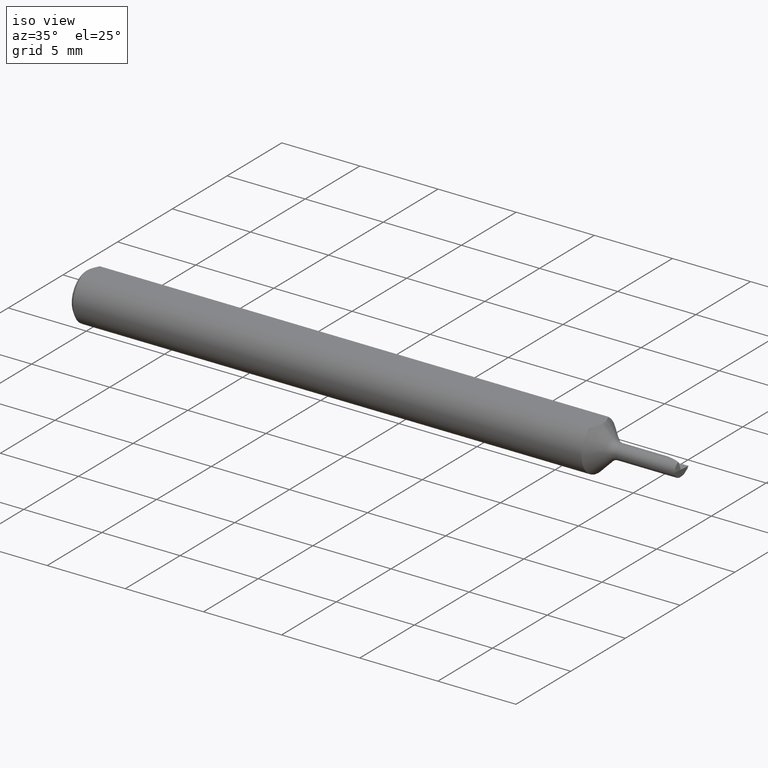
[diagram: clean part render]
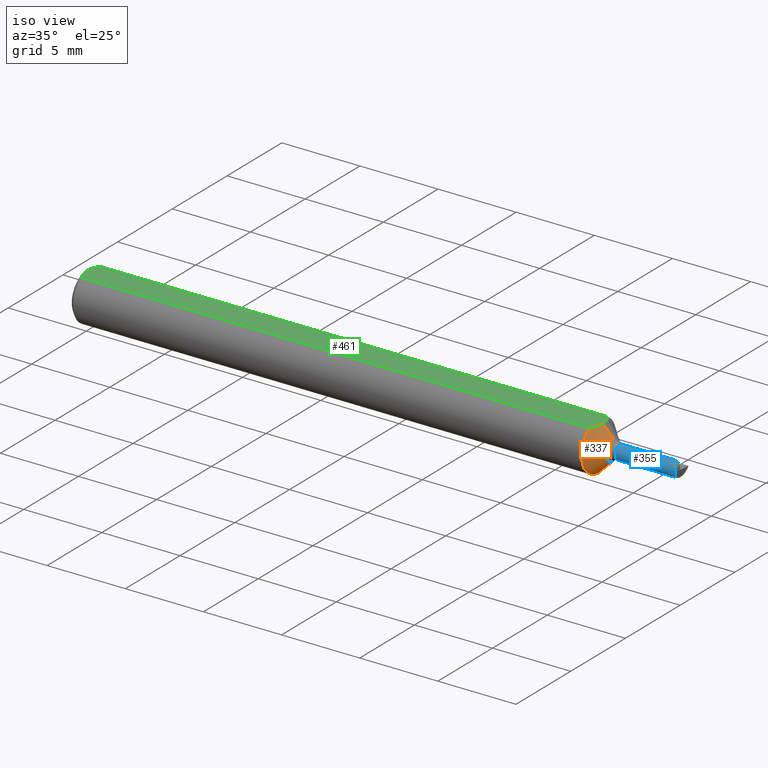
[diagram: same view with three faces highlighted in distinct colors, each labeled with its STEP entity id]
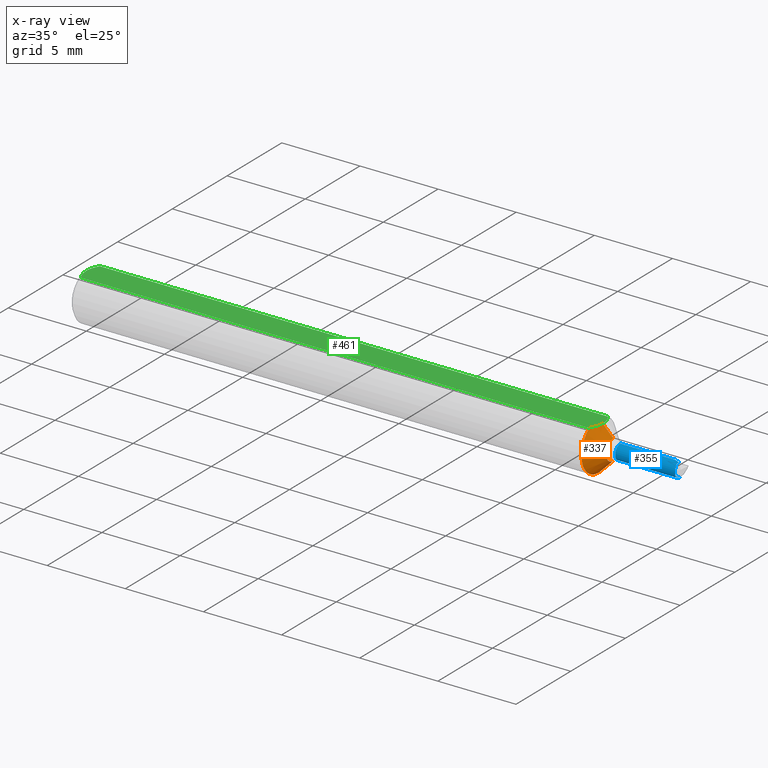
[diagram: x-ray of the same camera — body ghosted, the three highlighted faces saturated]
A machine part, iso view with three faces highlighted in distinct colors.
The next image is the same camera in x-ray (body ghosted, the three faces saturated) — at least one of them is partly hidden behind the body in this view.
Their STEP definitions:

[orange] entity #337 — the highlighted conical surface has half-angle 45 deg.
#30 = CARTESIAN_POINT ( 'NONE',  ( 1.291150000000000242, -0.03386738844375220686, 0.05235000000000000070 ) ) ;
#43 = DIRECTION ( 'NONE',  ( 0.000000000000000000, 0.000000000000000000, 1.000000000000000000 ) ) ;
#55 = EDGE_CURVE ( 'NONE', #108, #463, #227, .T. ) ;
#73 = ORIENTED_EDGE ( 'NONE', *, *, #130, .T. ) ;
#82 = ORIENTED_EDGE ( 'NONE', *, *, #562, .F. ) ;
#101 = CARTESIAN_POINT ( 'NONE',  ( 1.327677669529663707, 3.162323435702260084E-18, -0.02582233047033637152 ) ) ;
#108 = VERTEX_POINT ( 'NONE', #101 ) ;
#117 = VERTEX_POINT ( 'NONE', #545 ) ;
#130 = EDGE_CURVE ( 'NONE', #108, #213, #373, .T. ) ;
#134 = VECTOR ( 'NONE', #504, 39.37007874015748143 ) ;
#168 = DIRECTION ( 'NONE',  ( -1.000000000000000000, -0.000000000000000000, -0.000000000000000000 ) ) ;
#178 = DIRECTION ( 'NONE',  ( -1.000000000000000000, -0.000000000000000000, -0.000000000000000000 ) ) ;
#184 = AXIS2_PLACEMENT_3D ( 'NONE', #441, #178, #574 ) ;
#189 = CARTESIAN_POINT ( 'NONE',  ( 1.301150000000000029, -0.005924734429433297159, 0.05235000000000002152 ) ) ;
#197 = DIRECTION ( 'NONE',  ( -1.000000000000000000, -0.000000000000000000, -0.000000000000000000 ) ) ;
#213 = VERTEX_POINT ( 'NONE', #393 ) ;
#224 = ORIENTED_EDGE ( 'NONE', *, *, #546, .T. ) ;
#225 = FACE_OUTER_BOUND ( 'NONE', #524, .T. ) ;
#227 = LINE ( 'NONE', #395, #134 ) ;
#242 = ORIENTED_EDGE ( 'NONE', *, *, #632, .T. ) ;
#243 = AXIS2_PLACEMENT_3D ( 'NONE', #349, #197, #43 ) ;
#291 = CARTESIAN_POINT ( 'NONE',  ( 1.301150000000000029, -1.477724559795570125E-21, 0.05235000000000001458 ) ) ;
#297 = CARTESIAN_POINT ( 'NONE',  ( 1.300078879331740378, -0.01191647624495715749, 0.05235000000000002152 ) ) ;
#303 = CARTESIAN_POINT ( 'NONE',  ( 1.327677669529663707, 0.000000000000000000, 0.02582233047033637499 ) ) ;
#320 = CIRCLE ( 'NONE', #184, 0.06235000000000000264 ) ;
#337 = ADVANCED_FACE ( 'NONE', ( #225 ), #466, .T. ) ;
#344 = CARTESIAN_POINT ( 'NONE',  ( 1.291150000000000242, -0.03386738844375220686, 0.05235000000000000070 ) ) ;
#349 = CARTESIAN_POINT ( 'NONE',  ( 1.327677669529663707, 0.000000000000000000, 0.000000000000000000 ) ) ;
#373 = CIRCLE ( 'NONE', #243, 0.02582233047033637499 ) ;
#392 = DIRECTION ( 'NONE',  ( -0.7071067811865457964, 0.000000000000000000, 0.7071067811865492381 ) ) ;
#393 = CARTESIAN_POINT ( 'NONE',  ( 1.327677669529663707, 0.000000000000000000, 0.02582233047033637152 ) ) ;
#395 = CARTESIAN_POINT ( 'NONE',  ( 1.327677669529663707, 3.162323435702260854E-18, -0.02582233047033637499 ) ) ;
#414 = AXIS2_PLACEMENT_3D ( 'NONE', #516, #168, #619 ) ;
#441 = CARTESIAN_POINT ( 'NONE',  ( 1.291150000000000242, 0.000000000000000000, 0.000000000000000000 ) ) ;
#458 = VECTOR ( 'NONE', #392, 39.37007874015748143 ) ;
#463 = VERTEX_POINT ( 'NONE', #491 ) ;
#466 = CONICAL_SURFACE ( 'NONE', #414, 0.02582233047033637499, 0.7853981633974507215 ) ;
#474 = B_SPLINE_CURVE_WITH_KNOTS ( 'NONE', 3,
 ( #291, #189, #297, #626, #486, #30 ),
 .UNSPECIFIED., .F., .F.,
 ( 4, 2, 4 ),
 ( 0.002916663230282859516, 0.003365861382119317465, 0.003815059533955774979 ),
 .UNSPECIFIED. ) ;
#486 = CARTESIAN_POINT ( 'NONE',  ( 1.294001488371463227, -0.02861778674340261300, 0.05235000000000002152 ) ) ;
#491 = CARTESIAN_POINT ( 'NONE',  ( 1.291150000000000242, 7.635672792683746671E-18, -0.06235000000000000264 ) ) ;
#504 = DIRECTION ( 'NONE',  ( -0.7071067811865457964, 8.659560562354953812E-17, -0.7071067811865492381 ) ) ;
#516 = CARTESIAN_POINT ( 'NONE',  ( 1.327677669529663707, 0.000000000000000000, 0.000000000000000000 ) ) ;
#524 = EDGE_LOOP ( 'NONE', ( #554, #73, #242, #224, #82 ) ) ;
#545 = CARTESIAN_POINT ( 'NONE',  ( 1.301150000000000029, -1.477724559795570125E-21, 0.05235000000000001458 ) ) ;
#546 = EDGE_CURVE ( 'NONE', #117, #618, #474, .T. ) ;
#548 = LINE ( 'NONE', #303, #458 ) ;
#554 = ORIENTED_EDGE ( 'NONE', *, *, #55, .F. ) ;
#562 = EDGE_CURVE ( 'NONE', #463, #618, #320, .T. ) ;
#574 = DIRECTION ( 'NONE',  ( 0.000000000000000000, 0.000000000000000000, 1.000000000000000000 ) ) ;
#618 = VERTEX_POINT ( 'NONE', #344 ) ;
#619 = DIRECTION ( 'NONE',  ( 0.000000000000000000, 0.000000000000000000, 1.000000000000000000 ) ) ;
#626 = CARTESIAN_POINT ( 'NONE',  ( 1.296482645487524010, -0.02321992653401851181, 0.05235000000000001458 ) ) ;
#632 = EDGE_CURVE ( 'NONE', #213, #117, #548, .T. ) ;

[blue] entity #355 — the highlighted cylindrical surface (edge-blend (fillet) strip) has radius 0.4699 mm, axis along (-1, -0, -0).
#7 = ORIENTED_EDGE ( 'NONE', *, *, #249, .T. ) ;
#13 = EDGE_CURVE ( 'NONE', #319, #309, #231, .T. ) ;
#23 = ORIENTED_EDGE ( 'NONE', *, *, #33, .F. ) ;
#33 = EDGE_CURVE ( 'NONE', #607, #67, #137, .T. ) ;
#36 = DIRECTION ( 'NONE',  ( -1.000000000000000000, -0.000000000000000000, -0.000000000000000000 ) ) ;
#42 = EDGE_CURVE ( 'NONE', #607, #79, #422, .T. ) ;
#67 = VERTEX_POINT ( 'NONE', #440 ) ;
#79 = VERTEX_POINT ( 'NONE', #153 ) ;
#85 = CARTESIAN_POINT ( 'NONE',  ( 1.483333815684383605, 0.000000000000000000, 0.01850000000000000255 ) ) ;
#88 = CARTESIAN_POINT ( 'NONE',  ( 1.487126106453287244, -0.001380280959563399447, 0.01850000000000000602 ) ) ;
#91 = DIRECTION ( 'NONE',  ( 0.000000000000000000, 0.000000000000000000, 1.000000000000000000 ) ) ;
#98 = ORIENTED_EDGE ( 'NONE', *, *, #42, .T. ) ;
#109 = CIRCLE ( 'NONE', #598, 0.01850000000000000949 ) ;
#128 = CARTESIAN_POINT ( 'NONE',  ( 1.495246590703220857, 2.265596578422603809E-18, -0.01850000000000000255 ) ) ;
#137 = LINE ( 'NONE', #576, #643 ) ;
#141 = CARTESIAN_POINT ( 'NONE',  ( 0.000000000000000000, 0.000000000000000000, 0.01850000000000000255 ) ) ;
#153 = CARTESIAN_POINT ( 'NONE',  ( 1.496237987468385322, -0.01849999999999997827, 2.346737396167181165E-16 ) ) ;
#174 = CARTESIAN_POINT ( 'NONE',  ( 0.000000000000000000, 0.000000000000000000, 0.000000000000000000 ) ) ;
#195 = CARTESIAN_POINT ( 'NONE',  ( 1.496237987468385322, -0.01849999999999997827, 2.346737396167181165E-16 ) ) ;
#207 = CARTESIAN_POINT ( 'NONE',  ( 1.483333815684383605, 0.000000000000000000, 0.01850000000000000255 ) ) ;
#210 = CARTESIAN_POINT ( 'NONE',  ( 1.494967355536287235, -0.01849999999999991582, 0.009006612182587471829 ) ) ;
#221 = ORIENTED_EDGE ( 'NONE', *, *, #555, .F. ) ;
#231 = LINE ( 'NONE', #141, #633 ) ;
#236 = CARTESIAN_POINT ( 'NONE',  ( 1.495246590703220857, 2.265596578422603809E-18, -0.01850000000000000255 ) ) ;
#244 = CARTESIAN_POINT ( 'NONE',  ( 1.494952902551172302, -0.004097954674002866546, 0.01804042038007480295 ) ) ;
#248 = CARTESIAN_POINT ( 'NONE',  ( 1.345355339059327360, 0.000000000000000000, 0.000000000000000000 ) ) ;
#249 = EDGE_CURVE ( 'NONE', #481, #319, #253, .T. ) ;
#253 =( BOUNDED_CURVE ( )  B_SPLINE_CURVE ( 3, ( #298, #591, #88, #85 ),
 .UNSPECIFIED., .F., .F. ) 
 B_SPLINE_CURVE_WITH_KNOTS ( ( 4, 4 ),
 ( 4.766799014753298813, 4.990162771046300350 ),
 .UNSPECIFIED. ) 
 CURVE ( )  GEOMETRIC_REPRESENTATION_ITEM ( )  RATIONAL_B_SPLINE_CURVE ( ( 1.000000000000000000, 0.9958467056734143785, 0.9958467056734143785, 1.000000000000000000 ) ) 
 REPRESENTATION_ITEM ( '' )  );
#255 = CARTESIAN_POINT ( 'NONE',  ( 1.345355339059327360, 0.000000000000000000, 0.01850000000000000949 ) ) ;
#281 = FACE_OUTER_BOUND ( 'NONE', #290, .T. ) ;
#283 = CYLINDRICAL_SURFACE ( 'NONE', #426, 0.01850000000000000255 ) ;
#290 = EDGE_LOOP ( 'NONE', ( #23, #98, #534, #7, #336, #221 ) ) ;
#296 = DIRECTION ( 'NONE',  ( -1.000000000000000000, -0.000000000000000000, -0.000000000000000000 ) ) ;
#298 = CARTESIAN_POINT ( 'NONE',  ( 1.494952902551172302, -0.004097954674002866546, 0.01804042038007480295 ) ) ;
#309 = VERTEX_POINT ( 'NONE', #255 ) ;
#319 = VERTEX_POINT ( 'NONE', #207 ) ;
#328 = CARTESIAN_POINT ( 'NONE',  ( 1.494298471761238423, -0.01083704909609782378, -0.01850000000000001990 ) ) ;
#336 = ORIENTED_EDGE ( 'NONE', *, *, #13, .T. ) ;
#339 =( BOUNDED_CURVE ( )  B_SPLINE_CURVE ( 3, ( #544, #350, #210, #195 ),
 .UNSPECIFIED., .F., .F. ) 
 B_SPLINE_CURVE_WITH_KNOTS ( ( 4, 4 ),
 ( 5.951448363857583246, 7.298880934359466721 ),
 .UNSPECIFIED. ) 
 CURVE ( )  GEOMETRIC_REPRESENTATION_ITEM ( )  RATIONAL_B_SPLINE_CURVE ( ( 1.000000000000000000, 0.8543389983611018312, 0.8543389983611018312, 1.000000000000000000 ) ) 
 REPRESENTATION_ITEM ( '' )  );
#350 = CARTESIAN_POINT ( 'NONE',  ( 1.494465960141844629, -0.01288082332125571779, 0.01604535613734156541 ) ) ;
#355 = ADVANCED_FACE ( 'NONE', ( #281 ), #283, .T. ) ;
#372 = DIRECTION ( 'NONE',  ( 0.000000000000000000, 0.000000000000000000, 1.000000000000000000 ) ) ;
#422 =( BOUNDED_CURVE ( )  B_SPLINE_CURVE ( 3, ( #128, #328, #594, #499 ),
 .UNSPECIFIED., .F., .F. ) 
 B_SPLINE_CURVE_WITH_KNOTS ( ( 4, 4 ),
 ( 5.728084607564617237, 7.298880934359527117 ),
 .UNSPECIFIED. ) 
 CURVE ( )  GEOMETRIC_REPRESENTATION_ITEM ( )  RATIONAL_B_SPLINE_CURVE ( ( 1.000000000000000000, 0.8047378541243618288, 0.8047378541243618288, 1.000000000000000000 ) ) 
 REPRESENTATION_ITEM ( '' )  );
#426 = AXIS2_PLACEMENT_3D ( 'NONE', #174, #623, #372 ) ;
#440 = CARTESIAN_POINT ( 'NONE',  ( 1.345355339059327360, 2.265596578422604194E-18, -0.01850000000000000949 ) ) ;
#481 = VERTEX_POINT ( 'NONE', #244 ) ;
#483 = DIRECTION ( 'NONE',  ( -1.000000000000000000, -0.000000000000000000, -0.000000000000000000 ) ) ;
#499 = CARTESIAN_POINT ( 'NONE',  ( 1.496237987468385322, -0.01849999999999997827, 2.346737396167181165E-16 ) ) ;
#534 = ORIENTED_EDGE ( 'NONE', *, *, #614, .F. ) ;
#544 = CARTESIAN_POINT ( 'NONE',  ( 1.494952902551172302, -0.004097954674002866546, 0.01804042038007480295 ) ) ;
#555 = EDGE_CURVE ( 'NONE', #67, #309, #109, .T. ) ;
#576 = CARTESIAN_POINT ( 'NONE',  ( 0.000000000000000000, 2.265596578422603809E-18, -0.01850000000000000255 ) ) ;
#591 = CARTESIAN_POINT ( 'NONE',  ( 1.491015288325890253, -0.002751962849509067850, 0.01834616788330073467 ) ) ;
#594 = CARTESIAN_POINT ( 'NONE',  ( 1.494709121747062275, -0.01850000000000012745, -0.01083704909609763990 ) ) ;
#598 = AXIS2_PLACEMENT_3D ( 'NONE', #248, #483, #91 ) ;
#607 = VERTEX_POINT ( 'NONE', #236 ) ;
#614 = EDGE_CURVE ( 'NONE', #481, #79, #339, .T. ) ;
#623 = DIRECTION ( 'NONE',  ( -1.000000000000000000, -0.000000000000000000, -0.000000000000000000 ) ) ;
#633 = VECTOR ( 'NONE', #296, 39.37007874015748143 ) ;
#643 = VECTOR ( 'NONE', #36, 39.37007874015748143 ) ;

[green] entity #461 — the highlighted planar face has unit normal (0, 0, -1).
#12 = ORIENTED_EDGE ( 'NONE', *, *, #419, .T. ) ;
#18 = CARTESIAN_POINT ( 'NONE',  ( 0.01000000000000840841, -0.03386738844395137393, 0.05235000000000001458 ) ) ;
#20 = B_SPLINE_CURVE_WITH_KNOTS ( 'NONE', 3,
 ( #507, #25, #423, #230, #420, #366 ),
 .UNSPECIFIED., .F., .F.,
 ( 4, 2, 4 ),
 ( 0.0009229516234078821539, 0.001371626545108044996, 0.001820301466808207621 ),
 .UNSPECIFIED. ) ;
#22 = EDGE_CURVE ( 'NONE', #146, #117, #435, .T. ) ;
#25 = CARTESIAN_POINT ( 'NONE',  ( 0.007185421074056205608, 0.02868573718286560742, 0.05235000000000002152 ) ) ;
#27 = VERTEX_POINT ( 'NONE', #541 ) ;
#30 = CARTESIAN_POINT ( 'NONE',  ( 1.291150000000000242, -0.03386738844375220686, 0.05235000000000000070 ) ) ;
#87 = CARTESIAN_POINT ( 'NONE',  ( 1.500000000000000222, 0.06235000000000000264, 0.05235000000000001458 ) ) ;
#112 = EDGE_CURVE ( 'NONE', #433, #146, #403, .T. ) ;
#116 = CARTESIAN_POINT ( 'NONE',  ( 0.007163450771416182694, -0.02864528976632487248, 0.05235000000000001458 ) ) ;
#117 = VERTEX_POINT ( 'NONE', #545 ) ;
#119 = EDGE_LOOP ( 'NONE', ( #493, #361, #12, #418, #518, #628 ) ) ;
#145 = DIRECTION ( 'NONE',  ( 1.000000000000000000, 0.000000000000000000, 0.000000000000000000 ) ) ;
#146 = VERTEX_POINT ( 'NONE', #251 ) ;
#157 = VECTOR ( 'NONE', #145, 39.37007874015748143 ) ;
#179 = CARTESIAN_POINT ( 'NONE',  ( 1.296488788636946277, 0.02320328458619742157, 0.05235000000000002152 ) ) ;
#186 = AXIS2_PLACEMENT_3D ( 'NONE', #87, #334, #437 ) ;
#189 = CARTESIAN_POINT ( 'NONE',  ( 1.301150000000000029, -0.005924734429433297159, 0.05235000000000002152 ) ) ;
#230 = CARTESIAN_POINT ( 'NONE',  ( 0.001063697276021357847, 0.01189177144351693735, 0.05235000000000001458 ) ) ;
#251 = CARTESIAN_POINT ( 'NONE',  ( 1.291150000000000242, 0.03386738844375220686, 0.05235000000000000070 ) ) ;
#278 = CARTESIAN_POINT ( 'NONE',  ( 0.009999999999999890921, 0.03386738844375217911, 0.05235000000000001458 ) ) ;
#291 = CARTESIAN_POINT ( 'NONE',  ( 1.301150000000000029, -1.477724559795570125E-21, 0.05235000000000001458 ) ) ;
#297 = CARTESIAN_POINT ( 'NONE',  ( 1.300078879331740378, -0.01191647624495715749, 0.05235000000000002152 ) ) ;
#318 = CARTESIAN_POINT ( 'NONE',  ( 0.000000000000000000, 0.000000000000000000, 0.05235000000000033377 ) ) ;
#321 = CARTESIAN_POINT ( 'NONE',  ( 0.001055043921644571291, -0.01186408073217194367, 0.05235000000000002152 ) ) ;
#327 = FACE_OUTER_BOUND ( 'NONE', #119, .T. ) ;
#330 = PLANE ( 'NONE',  #186 ) ;
#331 = EDGE_CURVE ( 'NONE', #433, #27, #20, .T. ) ;
#334 = DIRECTION ( 'NONE',  ( 0.000000000000000000, 0.000000000000000000, -1.000000000000000000 ) ) ;
#344 = CARTESIAN_POINT ( 'NONE',  ( 1.291150000000000242, -0.03386738844375220686, 0.05235000000000000070 ) ) ;
#361 = ORIENTED_EDGE ( 'NONE', *, *, #331, .T. ) ;
#364 = CARTESIAN_POINT ( 'NONE',  ( -1.070637973615595603E-15, -0.005965286321711177862, 0.05235000000000002152 ) ) ;
#366 = CARTESIAN_POINT ( 'NONE',  ( 0.000000000000000000, 0.000000000000000000, 0.05235000000000033377 ) ) ;
#377 = CARTESIAN_POINT ( 'NONE',  ( 1.301150000000000029, 0.005920815533600997868, 0.05235000000000002152 ) ) ;
#385 = CARTESIAN_POINT ( 'NONE',  ( 1.301150000000000029, -1.477724559795570125E-21, 0.05235000000000001458 ) ) ;
#403 = LINE ( 'NONE', #589, #157 ) ;
#405 = B_SPLINE_CURVE_WITH_KNOTS ( 'NONE', 3,
 ( #318, #364, #321, #514, #116, #475 ),
 .UNSPECIFIED., .F., .F.,
 ( 4, 2, 4 ),
 ( 0.001820301466808207621, 0.002269751589840481119, 0.002719201712872754834 ),
 .UNSPECIFIED. ) ;
#418 = ORIENTED_EDGE ( 'NONE', *, *, #482, .F. ) ;
#419 = EDGE_CURVE ( 'NONE', #27, #444, #405, .T. ) ;
#420 = CARTESIAN_POINT ( 'NONE',  ( -1.099542139246802830E-15, 0.005954997531773979953, 0.05235000000000002152 ) ) ;
#423 = CARTESIAN_POINT ( 'NONE',  ( 0.004671770759546769666, 0.02323517832780105236, 0.05235000000000002152 ) ) ;
#427 = CARTESIAN_POINT ( 'NONE',  ( 1.293992034642579059, 0.02863519109676607513, 0.05235000000000002152 ) ) ;
#433 = VERTEX_POINT ( 'NONE', #278 ) ;
#435 = B_SPLINE_CURVE_WITH_KNOTS ( 'NONE', 3,
 ( #476, #427, #179, #585, #377, #385 ),
 .UNSPECIFIED., .F., .F.,
 ( 4, 2, 4 ),
 ( 0.002018861167849301565, 0.002467762199066080540, 0.002916663230282859516 ),
 .UNSPECIFIED. ) ;
#437 = DIRECTION ( 'NONE',  ( -1.000000000000000000, 0.000000000000000000, -0.000000000000000000 ) ) ;
#444 = VERTEX_POINT ( 'NONE', #18 ) ;
#446 = VECTOR ( 'NONE', #581, 39.37007874015748143 ) ;
#461 = ADVANCED_FACE ( 'NONE', ( #327 ), #330, .F. ) ;
#474 = B_SPLINE_CURVE_WITH_KNOTS ( 'NONE', 3,
 ( #291, #189, #297, #626, #486, #30 ),
 .UNSPECIFIED., .F., .F.,
 ( 4, 2, 4 ),
 ( 0.002916663230282859516, 0.003365861382119317465, 0.003815059533955774979 ),
 .UNSPECIFIED. ) ;
#475 = CARTESIAN_POINT ( 'NONE',  ( 0.01000000000000840841, -0.03386738844395137393, 0.05235000000000001458 ) ) ;
#476 = CARTESIAN_POINT ( 'NONE',  ( 1.291150000000000242, 0.03386738844375220686, 0.05235000000000000070 ) ) ;
#482 = EDGE_CURVE ( 'NONE', #618, #444, #495, .T. ) ;
#486 = CARTESIAN_POINT ( 'NONE',  ( 1.294001488371463227, -0.02861778674340261300, 0.05235000000000002152 ) ) ;
#493 = ORIENTED_EDGE ( 'NONE', *, *, #112, .F. ) ;
#495 = LINE ( 'NONE', #635, #446 ) ;
#507 = CARTESIAN_POINT ( 'NONE',  ( 0.009999999999999890921, 0.03386738844375217911, 0.05235000000000001458 ) ) ;
#514 = CARTESIAN_POINT ( 'NONE',  ( 0.004679365186825695105, -0.02325953974091124477, 0.05235000000000000764 ) ) ;
#518 = ORIENTED_EDGE ( 'NONE', *, *, #546, .F. ) ;
#541 = CARTESIAN_POINT ( 'NONE',  ( 0.000000000000000000, 0.000000000000000000, 0.05235000000000033377 ) ) ;
#545 = CARTESIAN_POINT ( 'NONE',  ( 1.301150000000000029, -1.477724559795570125E-21, 0.05235000000000001458 ) ) ;
#546 = EDGE_CURVE ( 'NONE', #117, #618, #474, .T. ) ;
#581 = DIRECTION ( 'NONE',  ( -1.000000000000000000, -0.000000000000000000, -0.000000000000000000 ) ) ;
#585 = CARTESIAN_POINT ( 'NONE',  ( 1.300078615661968584, 0.01191463382135339415, 0.05235000000000001458 ) ) ;
#589 = CARTESIAN_POINT ( 'NONE',  ( 0.000000000000000000, 0.03386738844375220686, 0.05235000000000000070 ) ) ;
#618 = VERTEX_POINT ( 'NONE', #344 ) ;
#626 = CARTESIAN_POINT ( 'NONE',  ( 1.296482645487524010, -0.02321992653401851181, 0.05235000000000001458 ) ) ;
#628 = ORIENTED_EDGE ( 'NONE', *, *, #22, .F. ) ;
#635 = CARTESIAN_POINT ( 'NONE',  ( 0.000000000000000000, -0.03386738844375220686, 0.05235000000000000070 ) ) ;